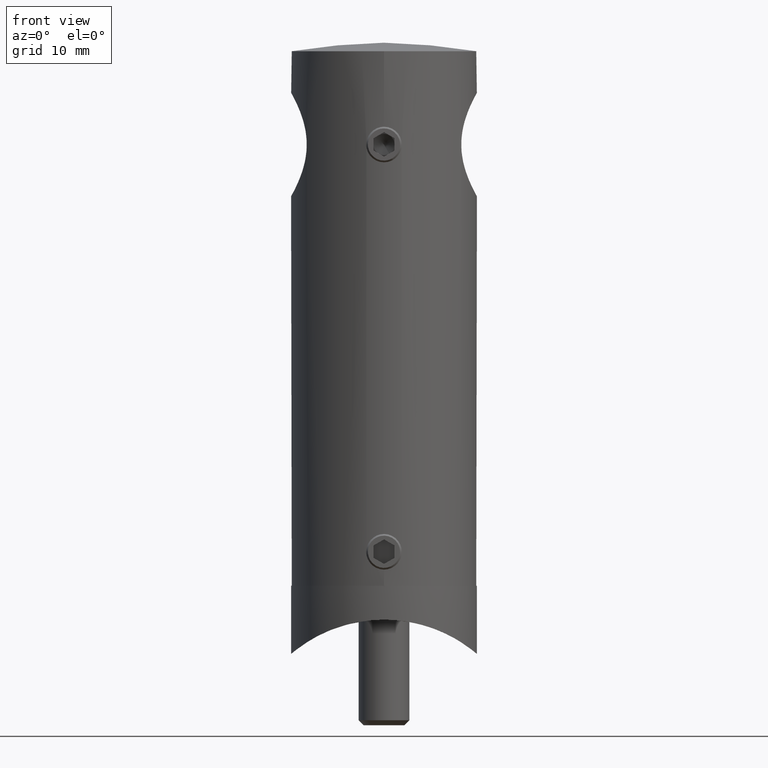
[diagram: clean part render]
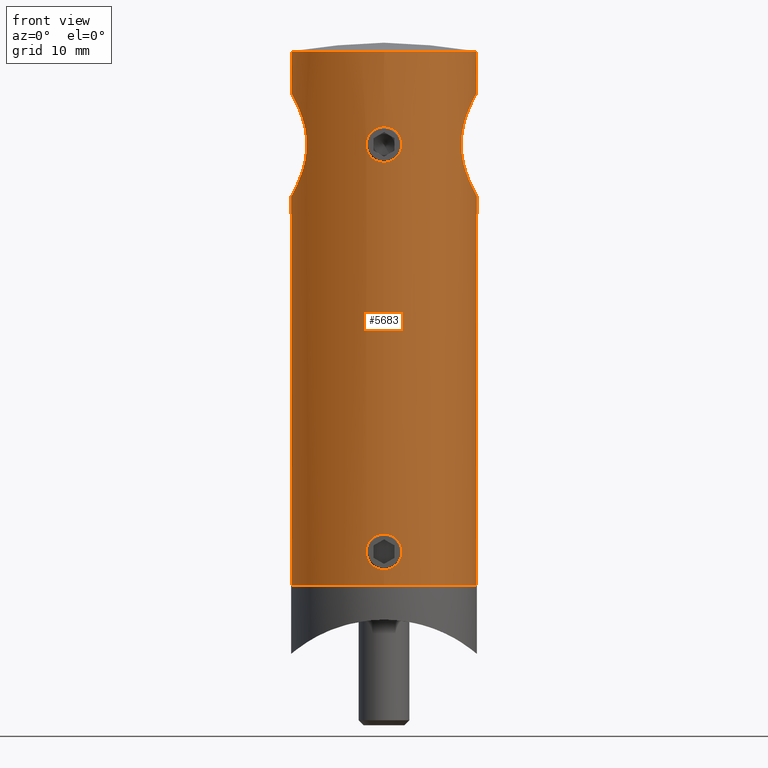
[diagram: same view with one face highlighted and labeled with its STEP entity id]
A machine part, front view. The second image highlights one B-rep face of the part: STEP entity #5683.
In plain terms, the highlighted cylindrical surface (bore or boss wall) has radius 10.95 mm, axis along (0, 0, 1).
Its self-contained STEP definition (entity closure, byte-faithful):
#10 = CARTESIAN_POINT ( 'NONE',  ( 2.099796498017635571, -10.74678345876895413, -27.72107757319184174 ) ) ;
#56 = EDGE_LOOP ( 'NONE', ( #15600 ) ) ;
#66 = CARTESIAN_POINT ( 'NONE',  ( -10.94999999999999751, 0.4121271812347865882, 13.89999999999999680 ) ) ;
#68 = CARTESIAN_POINT ( 'NONE',  ( -1.821859515416834885, -10.79764976955035394, -26.94667654771037490 ) ) ;
#112 = CARTESIAN_POINT ( 'NONE',  ( 9.093159490502698006, 6.100569724278071426, 19.59579318104650980 ) ) ;
#117 = CARTESIAN_POINT ( 'NONE',  ( 1.293101425834981999, -10.87512357765328197, -29.67703673224634997 ) ) ;
#168 = CARTESIAN_POINT ( 'NONE',  ( -10.29763792113849519, 3.739050856306787463, 15.16406318220803051 ) ) ;
#242 = CARTESIAN_POINT ( 'NONE',  ( 0.000000000000000000, -6.776263578034403945E-17, 31.00000000000000000 ) ) ;
#303 = CARTESIAN_POINT ( 'NONE',  ( 1.885917834137800009, -10.78650599950293021, 20.93399032342226462 ) ) ;
#313 = ORIENTED_EDGE ( 'NONE', *, *, #5298, .T. ) ;
#325 = CARTESIAN_POINT ( 'NONE',  ( -10.86057621934825868, -1.410670984356244828, 14.06192453670200493 ) ) ;
#343 = FACE_OUTER_BOUND ( 'NONE', #56, .T. ) ;
#391 = CARTESIAN_POINT ( 'NONE',  ( -10.18074281571860240, -4.042908466687186397, 15.41551523344308450 ) ) ;
#425 = CARTESIAN_POINT ( 'NONE',  ( -1.387672970768112579, -10.86216231582313796, 21.58222270293894596 ) ) ;
#448 = CARTESIAN_POINT ( 'NONE',  ( -10.73147197088350957, -2.184879164022425435, 14.30119630879068282 ) ) ;
#476 = CARTESIAN_POINT ( 'NONE',  ( -2.086371172607794033, -10.74943268627375659, 20.27557979222209994 ) ) ;
#526 = CARTESIAN_POINT ( 'NONE',  ( -1.582894502520246105, -10.83543499094428419, 21.38690661163142792 ) ) ;
#534 = DIRECTION ( 'NONE',  ( 0.000000000000000000, -1.000000000000000000, 0.000000000000000000 ) ) ;
#918 = CARTESIAN_POINT ( 'NONE',  ( 9.768452395021000711, 4.949254153054865490, 23.57118669077423334 ) ) ;
#978 = CARTESIAN_POINT ( 'NONE',  ( 10.92682766583283360, -0.8158183671098866441, 13.94132388569383352 ) ) ;
#1037 = CARTESIAN_POINT ( 'NONE',  ( 9.826326586135246899, -4.833712876441484951, 16.27394296238261617 ) ) ;
#1041 = CARTESIAN_POINT ( 'NONE',  ( -0.2757743680183740720, -10.94735313963124312, -30.08632021014065216 ) ) ;
#1078 = CARTESIAN_POINT ( 'NONE',  ( 9.944810887569845548, -4.584998447081173545, 15.97184031352808908 ) ) ;
#1130 = CARTESIAN_POINT ( 'NONE',  ( 10.76670801674820233, -2.004736178113188494, 25.76472609174774320 ) ) ;
#1134 = CIRCLE ( 'NONE', #9133, 10.95000000000000107 ) ;
#1136 = CARTESIAN_POINT ( 'NONE',  ( 0.2735842980591204898, -10.95002111150957624, -25.89988991854865574 ) ) ;
#1179 = ORIENTED_EDGE ( 'NONE', *, *, #14818, .T. ) ;
#1184 = CARTESIAN_POINT ( 'NONE',  ( 10.92670914720671149, 0.8172887995439637177, 13.94153729450738233 ) ) ;
#1188 = CARTESIAN_POINT ( 'NONE',  ( 1.281204221748352801, -10.87539648375202539, -26.33043682646926342 ) ) ;
#1220 = EDGE_LOOP ( 'NONE', ( #1179 ) ) ;
#1235 = CARTESIAN_POINT ( 'NONE',  ( 1.823210752181828820, -10.79742419212909965, -29.05108683988479612 ) ) ;
#1286 = CARTESIAN_POINT ( 'NONE',  ( -0.6781491315705323597, -10.92972327236432051, -29.99224664012108477 ) ) ;
#1340 = CARTESIAN_POINT ( 'NONE',  ( -10.83868741255074930, 1.607475542562763149, 14.10176821019718574 ) ) ;
#1399 = CARTESIAN_POINT ( 'NONE',  ( 10.18074281571859174, 4.042908466687191726, 15.41551523344308805 ) ) ;
#1449 = CARTESIAN_POINT ( 'NONE',  ( -9.490515665216376462, -5.464875276261936143, 22.73897214734641281 ) ) ;
#1500 = CARTESIAN_POINT ( 'NONE',  ( -9.093931798807561862, -6.099418408269275282, 20.42122344917229171 ) ) ;
#1532 = CARTESIAN_POINT ( 'NONE',  ( -0.2757743680183738499, -10.94735313963124312, 17.91367978985935494 ) ) ;
#1555 = CARTESIAN_POINT ( 'NONE',  ( -9.827761506231270872, -4.830806165742449920, 23.72984559646042158 ) ) ;
#1591 = CARTESIAN_POINT ( 'NONE',  ( -2.044347719850194700, -10.75799651192986239, 19.44736500388635037 ) ) ;
#1616 = CARTESIAN_POINT ( 'NONE',  ( -10.29628097381320728, 3.742490332636333239, 24.83299621117545541 ) ) ;
#1665 = CARTESIAN_POINT ( 'NONE',  ( -10.94999999999999396, 1.057097118173366823E-15, 13.89999999999999325 ) ) ;
#1698 = CARTESIAN_POINT ( 'NONE',  ( -1.281995706206414010, -10.87529441485164483, 21.66888029437902219 ) ) ;
#2032 = B_SPLINE_CURVE_WITH_KNOTS ( 'NONE', 3,
 ( #15478, #11923, #978, #10523, #14293, #9379, #15429, #8230, #3373, #4691, #1078, #1037, #9433, #2239, #13051, #10627, #4493, #3428, #13138, #6896, #9328, #11873, #12994, #8282, #2192, #4639, #9487, #15525, #15332, #8334, #5850, #10675, #1130, #3473, #10578, #11813, #5901, #14345, #5745, #9526, #2337, #4598, #14209, #10732, #2150, #12950, #14152, #8133, #918, #3320, #11767, #4545, #6953, #15376, #12138, #112, #6050, #15567, #3736, #10829, #9680, #12018, #2576, #1399, #9628, #12079, #4793, #11973, #3681, #4839, #14487, #1184, #7165, #14547 ),
 .UNSPECIFIED., .T., .F.,
 ( 4, 2, 2, 2, 2, 2, 2, 2, 2, 2, 2, 2, 2, 2, 2, 2, 2, 2, 2, 2, 2, 2, 2, 2, 2, 2, 2, 2, 2, 2, 2, 2, 2, 2, 2, 2, 4 ),
 ( 0.000000000000000000, 0.001217233959529843024, 0.002434467919059686049, 0.003651701878589529507, 0.004868935838119372098, 0.005477552817884296862, 0.006086169797649221627, 0.007303403757179064218, 0.008520637716708906809, 0.009737871676238745930, 0.01095510563576858679, 0.01217233959529842764, 0.01338957355482826850, 0.01460680751435810935, 0.01582404147388795021, 0.01704127543341779280, 0.01764989241318271063, 0.01825850939294763192, 0.01947574335247747104, 0.02069297731200731710, 0.02191021127153715622, 0.02312744523106700228, 0.02434467919059684141, 0.02495329617036175923, 0.02556191315012668053, 0.02677914710965650230, 0.02799638106918633101, 0.02921361502871615279, 0.03043084898824598150, 0.03164808294777581021, 0.03286531690730563199, 0.03408255086683546070, 0.03529978482636528248, 0.03651701878589511119, 0.03712563576566002554, 0.03773425274542493296, 0.03895148670495476168 ),
 .UNSPECIFIED. ) ;
#2150 = CARTESIAN_POINT ( 'NONE',  ( 10.18323341906132029, 4.036605263572401903, 24.58995614860064904 ) ) ;
#2192 = CARTESIAN_POINT ( 'NONE',  ( 9.593327564350756731, -5.285063471602612140, 23.07138322325212698 ) ) ;
#2196 = CARTESIAN_POINT ( 'NONE',  ( 1.355252715606880543E-17, -10.94999999999999751, -30.10000000000000142 ) ) ;
#2239 = CARTESIAN_POINT ( 'NONE',  ( 9.595974733628985121, -5.280216740019255006, 16.92054022387123169 ) ) ;
#2245 = FACE_BOUND ( 'NONE', #8988, .T. ) ;
#2337 = CARTESIAN_POINT ( 'NONE',  ( 10.77455119342263679, 1.988554168701583968, 25.78063558606951489 ) ) ;
#2379 = CARTESIAN_POINT ( 'NONE',  ( -10.92682766583283360, 0.8158183671098853118, 13.94132388569383352 ) ) ;
#2381 = CARTESIAN_POINT ( 'NONE',  ( 2.044858405884963481, -10.75791081565602880, -27.44804881978283007 ) ) ;
#2434 = CARTESIAN_POINT ( 'NONE',  ( -1.054900112451988781, -10.89966638724250281, -26.17904964909883958 ) ) ;
#2489 = CARTESIAN_POINT ( 'NONE',  ( -1.670039624064399320, -10.82217077548864204, -26.71951960455732689 ) ) ;
#2537 = CARTESIAN_POINT ( 'NONE',  ( -10.77254898319129417, 1.999174540163153990, 14.22309129948361317 ) ) ;
#2576 = CARTESIAN_POINT ( 'NONE',  ( 9.943921655449349473, 4.594676839572319871, 15.96867835757290521 ) ) ;
#2595 = FACE_BOUND ( 'NONE', #1220, .T. ) ;
#2633 = CARTESIAN_POINT ( 'NONE',  ( -10.60884419437644155, -2.738188333989597822, 14.53441983528883341 ) ) ;
#2664 = CARTESIAN_POINT ( 'NONE',  ( 0.5505505946182460697, -10.93908950952962478, 22.04494409253288723 ) ) ;
#2689 = CARTESIAN_POINT ( 'NONE',  ( -10.92571837505590260, 0.8301113191702993443, 26.05668212774836690 ) ) ;
#2719 = CARTESIAN_POINT ( 'NONE',  ( -2.100080651905816609, -10.74672793283170158, 20.13606717247182942 ) ) ;
#2740 = CARTESIAN_POINT ( 'NONE',  ( -9.824223078992860181, -4.842382934615432788, 16.26948384287063121 ) ) ;
#2792 = CARTESIAN_POINT ( 'NONE',  ( -10.76670801674819344, 2.004736178113185829, 25.76472609174773609 ) ) ;
#2853 = CARTESIAN_POINT ( 'NONE',  ( -10.83159546945464946, 1.617871517715537388, 25.88502555719835740 ) ) ;
#2887 = CARTESIAN_POINT ( 'NONE',  ( -1.388540965730447718, -10.86204216567910841, 18.41866458427049835 ) ) ;
#3025 = CARTESIAN_POINT ( 'NONE',  ( 0.000000000000000000, -10.94999999999999396, 17.89999999999999858 ) ) ;
#3094 = CARTESIAN_POINT ( 'NONE',  ( 0.5474944068088989368, -10.93714547456156261, 17.96791721342306758 ) ) ;
#3320 = CARTESIAN_POINT ( 'NONE',  ( 9.597132807920754516, 5.278130097716467795, 23.08306777076903771 ) ) ;
#3373 = CARTESIAN_POINT ( 'NONE',  ( 10.18119428978733154, -4.041693247994849969, 15.41457401766155400 ) ) ;
#3428 = CARTESIAN_POINT ( 'NONE',  ( 9.122515858528963406, -6.057353606905162557, 19.17430535306850814 ) ) ;
#3473 = CARTESIAN_POINT ( 'NONE',  ( 10.83159546945464768, -1.617871517715541385, 25.88502555719836096 ) ) ;
#3531 = CARTESIAN_POINT ( 'NONE',  ( -0.5472228455796224189, -10.93715092364591257, -25.96788923726215970 ) ) ;
#3582 = CARTESIAN_POINT ( 'NONE',  ( -9.767103415457006221, 4.951910828081859783, 16.43250515286716862 ) ) ;
#3585 = CARTESIAN_POINT ( 'NONE',  ( 1.992721759005947391, -10.76728434641842114, -28.67670243698784205 ) ) ;
#3640 = CARTESIAN_POINT ( 'NONE',  ( -1.280830752029747943, -10.87543660175324511, -29.66981359061468027 ) ) ;
#3681 = CARTESIAN_POINT ( 'NONE',  ( 10.76881476584365060, 1.993394816998884211, 14.23134303658119215 ) ) ;
#3686 = CARTESIAN_POINT ( 'NONE',  ( 0.1390809839677397408, -10.94999999999999574, -30.10000000000000497 ) ) ;
#3736 = CARTESIAN_POINT ( 'NONE',  ( 9.302565064768252512, 5.779008060995749041, 18.00720334480982388 ) ) ;
#3740 = VERTEX_POINT ( 'NONE', #14981 ) ;
#3771 = AXIS2_PLACEMENT_3D ( 'NONE', #242, #8667, #12203 ) ;
#3849 = CARTESIAN_POINT ( 'NONE',  ( -9.122570715121476326, -6.057273609166832884, 20.82644698176448372 ) ) ;
#3899 = CARTESIAN_POINT ( 'NONE',  ( -9.941984986648240152, 4.598809416968435038, 24.02653325968089604 ) ) ;
#3930 = CARTESIAN_POINT ( 'NONE',  ( 2.099796498017636015, -10.74678345876895058, 20.27892242680815826 ) ) ;
#3958 = CARTESIAN_POINT ( 'NONE',  ( -9.093110424224123634, 6.100642869923747824, 20.40268625380518941 ) ) ;
#4017 = CARTESIAN_POINT ( 'NONE',  ( -9.301887473417728813, 5.780084648363199129, 21.98958284450476341 ) ) ;
#4069 = CARTESIAN_POINT ( 'NONE',  ( -10.85903604788204113, 1.422432006849712938, 25.93525972351586972 ) ) ;
#4096 = CARTESIAN_POINT ( 'NONE',  ( -0.9319723657701312058, -10.91100937237502322, 21.88687929404428800 ) ) ;
#4362 = CARTESIAN_POINT ( 'NONE',  ( 2.033260313530652841, -10.75960453488444024, 19.45716824466147443 ) ) ;
#4429 = DIRECTION ( 'NONE',  ( -0.000000000000000000, 6.776263578034402713E-17, 1.000000000000000000 ) ) ;
#4493 = CARTESIAN_POINT ( 'NONE',  ( 9.227944537128733415, -5.895495562535474576, 18.38245975593098436 ) ) ;
#4545 = CARTESIAN_POINT ( 'NONE',  ( 9.306211012971372654, 5.773143507558661014, 22.00938902409952647 ) ) ;
#4598 = CARTESIAN_POINT ( 'NONE',  ( 10.61182838424365116, 2.726609514563149261, 25.47135230230033542 ) ) ;
#4639 = CARTESIAN_POINT ( 'NONE',  ( 9.822453404249017694, -4.845950760909270016, 23.72586258815131544 ) ) ;
#4691 = CARTESIAN_POINT ( 'NONE',  ( 10.00429035209408291, -4.454104839394610771, 15.82761410973536265 ) ) ;
#4696 = CARTESIAN_POINT ( 'NONE',  ( 0.9298435843171816151, -10.91118518871290988, -26.11211322283110547 ) ) ;
#4745 = CARTESIAN_POINT ( 'NONE',  ( -1.387672970768113245, -10.86216231582314151, -26.41777729706106470 ) ) ;
#4793 = CARTESIAN_POINT ( 'NONE',  ( 10.60884419437644155, 2.738188333989598711, 14.53441983528884052 ) ) ;
#4794 = CARTESIAN_POINT ( 'NONE',  ( -9.489581600530891947, 5.466479470351479186, 17.26434178596724678 ) ) ;
#4796 = CARTESIAN_POINT ( 'NONE',  ( -1.678334704184240023, -10.82237112238999188, -29.29145788275845774 ) ) ;
#4839 = CARTESIAN_POINT ( 'NONE',  ( 10.83331391922452980, 1.606332432912409125, 14.11181503576764129 ) ) ;
#4845 = CARTESIAN_POINT ( 'NONE',  ( -1.281995706206416674, -10.87529441485164838, -26.33111970562097426 ) ) ;
#4902 = CARTESIAN_POINT ( 'NONE',  ( 0.5505505946182431831, -10.93908950952962655, -25.95505590746709856 ) ) ;
#5049 = CARTESIAN_POINT ( 'NONE',  ( -10.29958940676430146, -3.733766856701450809, 24.84009295761133629 ) ) ;
#5085 = CARTESIAN_POINT ( 'NONE',  ( 1.281204221748351912, -10.87539648375202184, 21.66956317353075079 ) ) ;
#5106 = CARTESIAN_POINT ( 'NONE',  ( -10.92782771202142023, -0.8027466551852050491, 26.06047341402041084 ) ) ;
#5142 = CARTESIAN_POINT ( 'NONE',  ( 2.086595431609061801, -10.74938866887196021, 19.72626048518554143 ) ) ;
#5166 = CARTESIAN_POINT ( 'NONE',  ( -10.77455119342262613, -1.988554168701589075, 25.78063558606949357 ) ) ;
#5214 = VERTEX_POINT ( 'NONE', #3025 ) ;
#5216 = CARTESIAN_POINT ( 'NONE',  ( -9.593327564350754955, 5.285063471602608587, 23.07138322325212343 ) ) ;
#5298 = EDGE_CURVE ( 'NONE', #12792, #12792, #2032, .T. ) ;
#5303 = EDGE_LOOP ( 'NONE', ( #11903 ) ) ;
#5309 = CARTESIAN_POINT ( 'NONE',  ( -0.5472228455796208646, -10.93715092364590724, 22.03211076273784741 ) ) ;
#5464 = CARTESIAN_POINT ( 'NONE',  ( 1.293101425834980445, -10.87512357765328197, 18.32296326775366779 ) ) ;
#5619 = CIRCLE ( 'NONE', #3771, 10.94999999999998685 ) ;
#5683 = ADVANCED_FACE ( 'NONE', ( #8263, #2595, #2245, #9929, #343, #12811 ), #6750, .T. ) ;
#5745 = CARTESIAN_POINT ( 'NONE',  ( 10.92782771202141312, 0.8027466551851994980, 26.06047341402041440 ) ) ;
#5850 = CARTESIAN_POINT ( 'NONE',  ( 10.60658031837380477, -2.746774357630612062, 25.46118979747683753 ) ) ;
#5901 = CARTESIAN_POINT ( 'NONE',  ( 10.94939010762941400, -0.4272839714466650229, 26.09890519065454129 ) ) ;
#5941 = EDGE_CURVE ( 'NONE', #5214, #5214, #9215, .T. ) ;
#5946 = CARTESIAN_POINT ( 'NONE',  ( -1.388540965730447940, -10.86204216567910663, -29.58133541572950875 ) ) ;
#5998 = CARTESIAN_POINT ( 'NONE',  ( -9.305791171234611525, 5.773803549678548919, 17.99265941268094338 ) ) ;
#6001 = CARTESIAN_POINT ( 'NONE',  ( 1.821252655317250113, -10.79775344100291434, -26.94560343896731069 ) ) ;
#6050 = CARTESIAN_POINT ( 'NONE',  ( 9.120945736650540425, 6.059700103995923293, 19.19137537546631123 ) ) ;
#6053 = CARTESIAN_POINT ( 'NONE',  ( 1.580488950125705783, -10.83577938781543182, -26.61047088964984653 ) ) ;
#6087 = B_SPLINE_CURVE_WITH_KNOTS ( 'NONE', 3,
 ( #14394, #66, #2379, #1340, #2537, #12183, #13409, #168, #8593, #7166, #15569, #13252, #3582, #12021, #4794, #5998, #14434, #7220, #11099, #3958, #8799, #11039, #4017, #8645, #5216, #6214, #3899, #12397, #1616, #14753, #14649, #12348, #2792, #2853, #4069, #2689, #8701, #9886, #5106, #11208, #5166, #6433, #10000, #5049, #13679, #12292, #10059, #1555, #13569, #7479, #1449, #9939, #13622, #3849, #1500, #9840, #14856, #11263, #6372, #12457, #14802, #2740, #7603, #391, #7652, #7541, #2633, #448, #6319, #11161, #325, #7434, #8862, #1665 ),
 .UNSPECIFIED., .T., .F.,
 ( 4, 2, 2, 2, 2, 2, 2, 2, 2, 2, 2, 2, 2, 2, 2, 2, 2, 2, 2, 2, 2, 2, 2, 2, 2, 2, 2, 2, 2, 2, 2, 2, 2, 2, 2, 2, 4 ),
 ( 0.000000000000000000, 0.001217233959529840639, 0.002434467919059681278, 0.003651701878589521267, 0.004868935838119362557, 0.005477552817884276913, 0.006086169797649192137, 0.007303403757179029523, 0.008520637716708868645, 0.009737871676238707766, 0.01095510563576854515, 0.01217233959529838427, 0.01338957355482822340, 0.01460680751435805905, 0.01582404147388789817, 0.01704127543341773729, 0.01764989241318265858, 0.01825850939294757641, 0.01947574335247741900, 0.02069297731200725812, 0.02191021127153710071, 0.02312744523106693983, 0.02434467919059678243, 0.02495329617036170025, 0.02556191315012662155, 0.02677914710965645373, 0.02799638106918628591, 0.02921361502871611462, 0.03043084898824594681, 0.03164808294777578246, 0.03286531690730561117, 0.03408255086683544682, 0.03529978482636527554, 0.03651701878589511119, 0.03712563576566002554, 0.03773425274542493990, 0.03895148670495476861 ),
 .UNSPECIFIED. ) ;
#6187 = VERTEX_POINT ( 'NONE', #10236 ) ;
#6201 = EDGE_LOOP ( 'NONE', ( #13946 ) ) ;
#6214 = CARTESIAN_POINT ( 'NONE',  ( -9.822453404249021247, 4.845950760909269128, 23.72586258815132965 ) ) ;
#6297 = CARTESIAN_POINT ( 'NONE',  ( 1.580488950125705783, -10.83577938781543359, 21.38952911035014282 ) ) ;
#6319 = CARTESIAN_POINT ( 'NONE',  ( -10.76881476584365060, -1.993394816998885988, 14.23134303658119570 ) ) ;
#6350 = CARTESIAN_POINT ( 'NONE',  ( -2.981555974335137194E-16, -10.94999999999999396, 17.89999999999999858 ) ) ;
#6372 = CARTESIAN_POINT ( 'NONE',  ( -9.302565064768257841, -5.779008060995747265, 18.00720334480982388 ) ) ;
#6433 = CARTESIAN_POINT ( 'NONE',  ( -10.61182838424364583, -2.726609514563150150, 25.47135230230032832 ) ) ;
#6472 = CARTESIAN_POINT ( 'NONE',  ( -0.5446005407983297575, -10.93727582704267931, 17.96722018598682880 ) ) ;
#6520 = CARTESIAN_POINT ( 'NONE',  ( -0.1380576555321684218, -10.94998939549309469, 22.09994470506688558 ) ) ;
#6578 = CARTESIAN_POINT ( 'NONE',  ( 0.000000000000000000, -4.336808689942017736E-15, -32.00000000000000000 ) ) ;
#6612 = CARTESIAN_POINT ( 'NONE',  ( 10.95000000000000107, -1.226503707624227088E-15, 13.89999999999999503 ) ) ;
#6681 = CARTESIAN_POINT ( 'NONE',  ( -2.981555974335137194E-16, -10.94999999999999396, 17.89999999999999858 ) ) ;
#6750 = CYLINDRICAL_SURFACE ( 'NONE', #7833, 10.94999999999999396 ) ;
#6896 = CARTESIAN_POINT ( 'NONE',  ( 9.093110424224123634, -6.100642869923747824, 20.40268625380517520 ) ) ;
#6953 = CARTESIAN_POINT ( 'NONE',  ( 9.228174629133425455, 5.895138085144333573, 21.61892715928092912 ) ) ;
#7113 = CARTESIAN_POINT ( 'NONE',  ( -1.992919302065093046, -10.76724863828894030, -27.32378727517759387 ) ) ;
#7165 = CARTESIAN_POINT ( 'NONE',  ( 10.95000000000000284, 0.4121271812347799268, 13.89999999999999503 ) ) ;
#7166 = CARTESIAN_POINT ( 'NONE',  ( -10.00429035209408468, 4.454104839394614324, 15.82761410973536620 ) ) ;
#7169 = CARTESIAN_POINT ( 'NONE',  ( -2.032657309082526620, -10.75971895592318894, -27.45484575063256827 ) ) ;
#7220 = CARTESIAN_POINT ( 'NONE',  ( -9.122515858528966959, 6.057353606905164334, 19.17430535306851880 ) ) ;
#7222 = CARTESIAN_POINT ( 'NONE',  ( -0.2774278839632405846, -10.94731733981127419, -25.91386463431566156 ) ) ;
#7267 = CARTESIAN_POINT ( 'NONE',  ( 0.6806122791774021907, -10.92956076591045900, -29.99134957791890344 ) ) ;
#7434 = CARTESIAN_POINT ( 'NONE',  ( -10.92670914720671504, -0.8172887995439610531, 13.94153729450738943 ) ) ;
#7479 = CARTESIAN_POINT ( 'NONE',  ( -9.597132807920752740, -5.278130097716471347, 23.08306777076901639 ) ) ;
#7514 = CARTESIAN_POINT ( 'NONE',  ( 1.821252655317249225, -10.79775344100290901, 21.05439656103269641 ) ) ;
#7541 = CARTESIAN_POINT ( 'NONE',  ( -10.51219597293309604, -3.084431879808084087, 14.72263341771160761 ) ) ;
#7577 = CARTESIAN_POINT ( 'NONE',  ( -0.9323085337779204451, -10.91098244215235091, 18.11327433961146838 ) ) ;
#7603 = CARTESIAN_POINT ( 'NONE',  ( -9.943921655449356578, -4.594676839572312765, 15.96867835757289811 ) ) ;
#7634 = CARTESIAN_POINT ( 'NONE',  ( -1.670039624064398875, -10.82217077548863671, 21.28048039544268377 ) ) ;
#7652 = CARTESIAN_POINT ( 'NONE',  ( -10.29870546864894720, -3.735859989955133909, 15.16185281326796641 ) ) ;
#7682 = CARTESIAN_POINT ( 'NONE',  ( -1.678334704184240023, -10.82237112238998833, 18.70854211724153870 ) ) ;
#7833 = AXIS2_PLACEMENT_3D ( 'NONE', #9212, #4429, #15313 ) ;
#8133 = CARTESIAN_POINT ( 'NONE',  ( 9.827761506231265543, 4.830806165742444591, 23.72984559646041092 ) ) ;
#8230 = CARTESIAN_POINT ( 'NONE',  ( 10.29763792113849163, -3.739050856306786130, 15.16406318220802518 ) ) ;
#8236 = CARTESIAN_POINT ( 'NONE',  ( -0.1390809839677406845, -10.94999999999999929, -30.10000000000000142 ) ) ;
#8263 = FACE_BOUND ( 'NONE', #6201, .T. ) ;
#8282 = CARTESIAN_POINT ( 'NONE',  ( 9.485696458579454315, -5.473212201811906041, 22.72245599254218718 ) ) ;
#8334 = CARTESIAN_POINT ( 'NONE',  ( 10.50990397244917318, -3.092176300193995697, 25.27281063529038008 ) ) ;
#8337 = CARTESIAN_POINT ( 'NONE',  ( -2.086371172607794033, -10.74943268627376014, -27.72442020777791427 ) ) ;
#8382 = CARTESIAN_POINT ( 'NONE',  ( -2.044347719850195144, -10.75799651192986417, -28.55263499611365319 ) ) ;
#8432 = CARTESIAN_POINT ( 'NONE',  ( 2.086595431609061801, -10.74938866887195843, -28.27373951481447278 ) ) ;
#8492 = CARTESIAN_POINT ( 'NONE',  ( 0.5474944068088999360, -10.93714547456156438, -30.03208278657693242 ) ) ;
#8593 = CARTESIAN_POINT ( 'NONE',  ( -10.18119428978733865, 4.041693247994849969, 15.41457401766155932 ) ) ;
#8645 = CARTESIAN_POINT ( 'NONE',  ( -9.485696458579452539, 5.473212201811906041, 22.72245599254220849 ) ) ;
#8667 = DIRECTION ( 'NONE',  ( -0.000000000000000000, 6.776263578034402713E-17, 1.000000000000000000 ) ) ;
#8701 = CARTESIAN_POINT ( 'NONE',  ( -10.94939010762941400, 0.4272839714466597494, 26.09890519065453773 ) ) ;
#8799 = CARTESIAN_POINT ( 'NONE',  ( -9.120845060787624803, 6.059846290267839386, 20.80716163340864355 ) ) ;
#8862 = CARTESIAN_POINT ( 'NONE',  ( -10.94999999999999218, -0.4121271812347815366, 13.89999999999998970 ) ) ;
#8896 = CARTESIAN_POINT ( 'NONE',  ( -1.887459140277792713, -10.78623514378675807, 20.93085390235910381 ) ) ;
#8945 = CARTESIAN_POINT ( 'NONE',  ( -1.834675837396852804, -10.79573115272995310, 18.94230079405419787 ) ) ;
#8988 = EDGE_LOOP ( 'NONE', ( #11928 ) ) ;
#9094 = CARTESIAN_POINT ( 'NONE',  ( 0.6806122791774021907, -10.92956076591045722, 18.00865042208109656 ) ) ;
#9133 = AXIS2_PLACEMENT_3D ( 'NONE', #6578, #13775, #534 ) ;
#9142 = CARTESIAN_POINT ( 'NONE',  ( 1.992721759005946502, -10.76728434641841936, 19.32329756301215795 ) ) ;
#9212 = CARTESIAN_POINT ( 'NONE',  ( 0.000000000000000000, 0.000000000000000000, 32.00000000000000000 ) ) ;
#9215 = B_SPLINE_CURVE_WITH_KNOTS ( 'NONE', 3,
 ( #6350, #11300, #1532, #6472, #14781, #7577, #14835, #14891, #2887, #7682, #8945, #1591, #9977, #2719, #476, #9916, #11187, #8896, #11241, #7634, #526, #425, #1698, #10090, #4096, #12540, #5309, #13764, #6520, #9868, #2664, #11075, #12327, #5085, #13548, #6297, #14733, #7514, #303, #11133, #3930, #12379, #5142, #4362, #9142, #12760, #12809, #15047, #12706, #5464, #10293, #9094, #3094, #13919, #11521, #6681 ),
 .UNSPECIFIED., .T., .F.,
 ( 4, 2, 2, 2, 2, 2, 2, 2, 2, 2, 2, 2, 2, 2, 2, 2, 2, 2, 2, 2, 2, 2, 2, 2, 2, 2, 2, 4 ),
 ( 0.000000000000000000, 0.0004112486030759722618, 0.0008224972061519445236, 0.001233745809227916731, 0.001644994412303889047, 0.002467491618455832595, 0.003289988824607775926, 0.003701237427683747375, 0.004112486030759718823, 0.004523734633835690272, 0.004934983236911661721, 0.005346231839987633169, 0.005757480443063605485, 0.006168729046139576934, 0.006579977649215547515, 0.007402474855367492147, 0.007813723458443463596, 0.008224972061519435912, 0.008636220664595408228, 0.009047469267671380544, 0.009869966473823325176, 0.01028121507689929229, 0.01069246367997525766, 0.01110371228305122651, 0.01151496088612719362, 0.01233745809227912785, 0.01274870669535509843, 0.01315995529843106554 ),
 .UNSPECIFIED. ) ;
#9328 = CARTESIAN_POINT ( 'NONE',  ( 9.120845060787628356, -6.059846290267841162, 20.80716163340865066 ) ) ;
#9379 = CARTESIAN_POINT ( 'NONE',  ( 10.60962168609973766, -2.735038960441765532, 14.53292263992870126 ) ) ;
#9433 = CARTESIAN_POINT ( 'NONE',  ( 9.767103415457007998, -4.951910828081856231, 16.43250515286715796 ) ) ;
#9487 = CARTESIAN_POINT ( 'NONE',  ( 9.941984986648234823, -4.598809416968437702, 24.02653325968088538 ) ) ;
#9526 = CARTESIAN_POINT ( 'NONE',  ( 10.84037963601201504, 1.596242476308074698, 25.90133460763657425 ) ) ;
#9581 = CARTESIAN_POINT ( 'NONE',  ( 2.100100907954766782, -10.74672397463975315, -28.13715662478887580 ) ) ;
#9628 = CARTESIAN_POINT ( 'NONE',  ( 10.29870546864893832, 3.735859989955138349, 15.16185281326796286 ) ) ;
#9632 = CARTESIAN_POINT ( 'NONE',  ( -1.887459140277792713, -10.78623514378676163, -27.06914609764089263 ) ) ;
#9680 = CARTESIAN_POINT ( 'NONE',  ( 9.594863924184544146, 5.282292860837285886, 16.92383267418601633 ) ) ;
#9683 = CARTESIAN_POINT ( 'NONE',  ( -2.099837599490393281, -10.74677542721649282, -28.27585165488173757 ) ) ;
#9840 = CARTESIAN_POINT ( 'NONE',  ( -9.093159490502694453, -6.100569724278070538, 19.59579318104650270 ) ) ;
#9868 = CARTESIAN_POINT ( 'NONE',  ( 0.2735842980591227103, -10.95002111150956559, 22.10011008145134426 ) ) ;
#9886 = CARTESIAN_POINT ( 'NONE',  ( -10.95058672764290364, -0.3954309569055305951, 26.10105322671165951 ) ) ;
#9916 = CARTESIAN_POINT ( 'NONE',  ( -2.032657309082527064, -10.75971895592318894, 20.54515424936743173 ) ) ;
#9929 = FACE_BOUND ( 'NONE', #10952, .T. ) ;
#9939 = CARTESIAN_POINT ( 'NONE',  ( -9.306211012971374430, -5.773143507558668119, 22.00938902409952291 ) ) ;
#9977 = CARTESIAN_POINT ( 'NONE',  ( -2.099837599490393281, -10.74677542721648216, 19.72414834511826953 ) ) ;
#10000 = CARTESIAN_POINT ( 'NONE',  ( -10.51504410476971962, -3.075126723060551903, 25.28309666915531295 ) ) ;
#10059 = CARTESIAN_POINT ( 'NONE',  ( -9.946506090458775873, -4.581331796192328554, 24.03234861558467372 ) ) ;
#10084 = VERTEX_POINT ( 'NONE', #12693 ) ;
#10090 = CARTESIAN_POINT ( 'NONE',  ( -1.054900112451986116, -10.89966638724249748, 21.82095035090117463 ) ) ;
#10236 = CARTESIAN_POINT ( 'NONE',  ( 0.000000000000000000, -10.95000000000000462, -32.00000000000000000 ) ) ;
#10293 = CARTESIAN_POINT ( 'NONE',  ( 1.059427588198855519, -10.90157051192847426, 18.16630481007814524 ) ) ;
#10523 = CARTESIAN_POINT ( 'NONE',  ( 10.83868741255075108, -1.607475542562763815, 14.10176821019718396 ) ) ;
#10578 = CARTESIAN_POINT ( 'NONE',  ( 10.85903604788204646, -1.422432006849714492, 25.93525972351587683 ) ) ;
#10627 = CARTESIAN_POINT ( 'NONE',  ( 9.305791171234613302, -5.773803549678551583, 17.99265941268094338 ) ) ;
#10675 = CARTESIAN_POINT ( 'NONE',  ( 10.72931504694501648, -2.195393467891829431, 25.69474216844699654 ) ) ;
#10681 = CARTESIAN_POINT ( 'NONE',  ( 1.887599673832025982, -10.78620969927769835, -28.93050183685486232 ) ) ;
#10732 = CARTESIAN_POINT ( 'NONE',  ( 10.29958940676430323, 3.733766856701444148, 24.84009295761133984 ) ) ;
#10737 = CARTESIAN_POINT ( 'NONE',  ( -0.9319723657701336483, -10.91100937237503210, -26.11312070595572266 ) ) ;
#10788 = CARTESIAN_POINT ( 'NONE',  ( -0.6781183844136841055, -10.92972339409076277, -26.00775467936993479 ) ) ;
#10829 = CARTESIAN_POINT ( 'NONE',  ( 9.486790008022518705, 5.471331309378421714, 17.27370097366294743 ) ) ;
#10833 = CARTESIAN_POINT ( 'NONE',  ( 1.386739004820739751, -10.86227486281690879, -26.41706241358393825 ) ) ;
#10889 = CARTESIAN_POINT ( 'NONE',  ( 0.2763839898919890348, -10.94735187830101886, -30.08631792091251000 ) ) ;
#10952 = EDGE_LOOP ( 'NONE', ( #313 ) ) ;
#11039 = CARTESIAN_POINT ( 'NONE',  ( -9.224763464033930660, 5.900448348828395417, 21.59936119964442014 ) ) ;
#11075 = CARTESIAN_POINT ( 'NONE',  ( 0.9298435843171852788, -10.91118518871291165, 21.88788677716889453 ) ) ;
#11099 = CARTESIAN_POINT ( 'NONE',  ( -9.093983088392500136, 6.099341948236393307, 19.57806701499056601 ) ) ;
#11133 = CARTESIAN_POINT ( 'NONE',  ( 2.044858405884962593, -10.75791081565602525, 20.55195118021715572 ) ) ;
#11161 = CARTESIAN_POINT ( 'NONE',  ( -10.83331391922452980, -1.606332432912406460, 14.11181503576763774 ) ) ;
#11187 = CARTESIAN_POINT ( 'NONE',  ( -1.992919302065092602, -10.76724863828894385, 20.67621272482239547 ) ) ;
#11208 = CARTESIAN_POINT ( 'NONE',  ( -10.84037963601201859, -1.596242476308079583, 25.90133460763658135 ) ) ;
#11241 = CARTESIAN_POINT ( 'NONE',  ( -1.821859515416834219, -10.79764976955034328, 21.05332345228963220 ) ) ;
#11263 = CARTESIAN_POINT ( 'NONE',  ( -9.225227869656606572, -5.899727725429638525, 18.39779779691595962 ) ) ;
#11300 = CARTESIAN_POINT ( 'NONE',  ( -0.1390809839677408233, -10.94999999999999751, 17.89999999999999147 ) ) ;
#11521 = CARTESIAN_POINT ( 'NONE',  ( 0.1390809839677392412, -10.94999999999999218, 17.90000000000000213 ) ) ;
#11767 = CARTESIAN_POINT ( 'NONE',  ( 9.490515665216376462, 5.464875276261931702, 22.73897214734641636 ) ) ;
#11813 = CARTESIAN_POINT ( 'NONE',  ( 10.92571837505590437, -0.8301113191703012317, 26.05668212774836690 ) ) ;
#11873 = CARTESIAN_POINT ( 'NONE',  ( 9.224763464033925331, -5.900448348828397194, 21.59936119964442724 ) ) ;
#11903 = ORIENTED_EDGE ( 'NONE', *, *, #13963, .T. ) ;
#11923 = CARTESIAN_POINT ( 'NONE',  ( 10.94999999999999929, -0.4121271812347877539, 13.89999999999999503 ) ) ;
#11926 = CARTESIAN_POINT ( 'NONE',  ( -0.1380576555321710586, -10.94998939549310357, -25.90005529493310377 ) ) ;
#11928 = ORIENTED_EDGE ( 'NONE', *, *, #13602, .T. ) ;
#11973 = CARTESIAN_POINT ( 'NONE',  ( 10.73147197088350957, 2.184879164022422771, 14.30119630879068282 ) ) ;
#11977 = CARTESIAN_POINT ( 'NONE',  ( -1.582894502520246549, -10.83543499094428775, -26.61309338836857918 ) ) ;
#12018 = CARTESIAN_POINT ( 'NONE',  ( 9.824223078992853075, 4.842382934615430123, 16.26948384287061700 ) ) ;
#12021 = CARTESIAN_POINT ( 'NONE',  ( -9.595974733628974462, 5.280216740019255894, 16.92054022387121748 ) ) ;
#12025 = CARTESIAN_POINT ( 'NONE',  ( -1.834675837396853026, -10.79573115272995310, -29.05769920594579858 ) ) ;
#12079 = CARTESIAN_POINT ( 'NONE',  ( 10.51219597293309249, 3.084431879808084087, 14.72263341771160583 ) ) ;
#12083 = CARTESIAN_POINT ( 'NONE',  ( -0.5446005407983292024, -10.93727582704268642, -30.03277981401317831 ) ) ;
#12138 = CARTESIAN_POINT ( 'NONE',  ( 9.093931798807561862, 6.099418408269274394, 20.42122344917229526 ) ) ;
#12140 = CARTESIAN_POINT ( 'NONE',  ( -2.100080651905816609, -10.74672793283170336, -27.86393282752818124 ) ) ;
#12183 = CARTESIAN_POINT ( 'NONE',  ( -10.60962168609973766, 2.735038960441764200, 14.53292263992869948 ) ) ;
#12203 = DIRECTION ( 'NONE',  ( 0.000000000000000000, -1.000000000000000000, 0.000000000000000000 ) ) ;
#12292 = CARTESIAN_POINT ( 'NONE',  ( -10.00609170345706822, -4.450068544669215420, 24.17670442127998598 ) ) ;
#12327 = CARTESIAN_POINT ( 'NONE',  ( 1.052445151326516060, -10.89991248313860872, 21.82243920383785252 ) ) ;
#12348 = CARTESIAN_POINT ( 'NONE',  ( -10.72931504694501470, 2.195393467891819661, 25.69474216844699299 ) ) ;
#12379 = CARTESIAN_POINT ( 'NONE',  ( 2.100100907954767671, -10.74672397463975138, 19.86284337521113486 ) ) ;
#12397 = CARTESIAN_POINT ( 'NONE',  ( -10.17839522011391296, 4.048750952021975102, 24.57926128031751389 ) ) ;
#12457 = CARTESIAN_POINT ( 'NONE',  ( -9.486790008022529364, -5.471331309378424379, 17.27370097366294743 ) ) ;
#12540 = CARTESIAN_POINT ( 'NONE',  ( -0.6781183844136825511, -10.92972339409076277, 21.99224532063006876 ) ) ;
#12693 = CARTESIAN_POINT ( 'NONE',  ( 0.000000000000000000, -10.94999999999998685, 31.00000000000000000 ) ) ;
#12706 = CARTESIAN_POINT ( 'NONE',  ( 1.582510692289806453, -10.83548065110496594, 18.61280831047456985 ) ) ;
#12760 = CARTESIAN_POINT ( 'NONE',  ( 1.887599673832026204, -10.78620969927769302, 19.06949816314513413 ) ) ;
#12792 = VERTEX_POINT ( 'NONE', #6612 ) ;
#12809 = CARTESIAN_POINT ( 'NONE',  ( 1.823210752181827710, -10.79742419212909610, 18.94891316011519677 ) ) ;
#12811 = FACE_OUTER_BOUND ( 'NONE', #5303, .T. ) ;
#12950 = CARTESIAN_POINT ( 'NONE',  ( 10.00609170345707000, 4.450068544669212756, 24.17670442127999664 ) ) ;
#12994 = CARTESIAN_POINT ( 'NONE',  ( 9.301887473417728813, -5.780084648363200905, 21.98958284450477052 ) ) ;
#13051 = CARTESIAN_POINT ( 'NONE',  ( 9.489581600530893724, -5.466479470351482739, 17.26434178596725744 ) ) ;
#13138 = CARTESIAN_POINT ( 'NONE',  ( 9.093983088392496583, -6.099341948236395083, 19.57806701499056246 ) ) ;
#13199 = CARTESIAN_POINT ( 'NONE',  ( -0.9323085337779207782, -10.91098244215235269, -29.88672566038853873 ) ) ;
#13252 = CARTESIAN_POINT ( 'NONE',  ( -9.826326586135243346, 4.833712876441484063, 16.27394296238261262 ) ) ;
#13254 = CARTESIAN_POINT ( 'NONE',  ( 1.669072336391161260, -10.82232129180630409, -26.71823914932954125 ) ) ;
#13299 = CARTESIAN_POINT ( 'NONE',  ( 2.033260313530653729, -10.75960453488444557, -28.54283175533852202 ) ) ;
#13352 = CARTESIAN_POINT ( 'NONE',  ( 1.355252715606880543E-17, -10.94999999999999751, -30.10000000000000142 ) ) ;
#13409 = CARTESIAN_POINT ( 'NONE',  ( -10.51285461667963972, 3.082488583835407692, 14.72126432350995451 ) ) ;
#13548 = CARTESIAN_POINT ( 'NONE',  ( 1.386739004820739751, -10.86227486281690346, 21.58293758641606530 ) ) ;
#13569 = CARTESIAN_POINT ( 'NONE',  ( -9.768452395020995382, -4.949254153054862826, 23.57118669077422624 ) ) ;
#13602 = EDGE_CURVE ( 'NONE', #3740, #3740, #6087, .T. ) ;
#13622 = CARTESIAN_POINT ( 'NONE',  ( -9.228174629133425455, -5.895138085144337126, 21.61892715928092201 ) ) ;
#13679 = CARTESIAN_POINT ( 'NONE',  ( -10.18323341906130786, -4.036605263572408120, 24.58995614860063839 ) ) ;
#13764 = CARTESIAN_POINT ( 'NONE',  ( -0.2774278839632387528, -10.94731733981126531, 22.08613536568433844 ) ) ;
#13775 = DIRECTION ( 'NONE',  ( -0.000000000000000000, 6.776263578034402713E-17, 1.000000000000000000 ) ) ;
#13919 = CARTESIAN_POINT ( 'NONE',  ( 0.2763839898919896454, -10.94735187830101886, 17.91368207908748644 ) ) ;
#13946 = ORIENTED_EDGE ( 'NONE', *, *, #5941, .T. ) ;
#13963 = EDGE_CURVE ( 'NONE', #6187, #6187, #1134, .T. ) ;
#14152 = CARTESIAN_POINT ( 'NONE',  ( 9.946506090458772320, 4.581331796192322336, 24.03234861558467017 ) ) ;
#14209 = CARTESIAN_POINT ( 'NONE',  ( 10.51504410476972495, 3.075126723060547018, 25.28309666915532716 ) ) ;
#14293 = CARTESIAN_POINT ( 'NONE',  ( 10.77254898319129062, -1.999174540163154878, 14.22309129948361495 ) ) ;
#14345 = CARTESIAN_POINT ( 'NONE',  ( 10.95058672764290186, 0.3954309569055290408, 26.10105322671167727 ) ) ;
#14394 = CARTESIAN_POINT ( 'NONE',  ( -10.94999999999999396, 1.057097118173366823E-15, 13.89999999999999325 ) ) ;
#14395 = CARTESIAN_POINT ( 'NONE',  ( 1.059427588198857073, -10.90157051192846716, -29.83369518992189029 ) ) ;
#14425 = EDGE_CURVE ( 'NONE', #10084, #10084, #5619, .T. ) ;
#14434 = CARTESIAN_POINT ( 'NONE',  ( -9.227944537128729863, 5.895495562535473688, 18.38245975593099857 ) ) ;
#14435 = CARTESIAN_POINT ( 'NONE',  ( 1.885917834137799565, -10.78650599950293376, -27.06600967657773182 ) ) ;
#14487 = CARTESIAN_POINT ( 'NONE',  ( 10.86057621934826223, 1.410670984356247049, 14.06192453670201203 ) ) ;
#14492 = CARTESIAN_POINT ( 'NONE',  ( 1.670701551248524597, -10.82207110299603769, -29.27970204286241795 ) ) ;
#14547 = CARTESIAN_POINT ( 'NONE',  ( 10.95000000000000107, -9.757819552369539906E-16, 13.89999999999999503 ) ) ;
#14550 = CARTESIAN_POINT ( 'NONE',  ( 1.582510692289808008, -10.83548065110496594, -29.38719168952543725 ) ) ;
#14649 = CARTESIAN_POINT ( 'NONE',  ( -10.60658031837380655, 2.746774357630604069, 25.46118979747684108 ) ) ;
#14733 = CARTESIAN_POINT ( 'NONE',  ( 1.669072336391162814, -10.82232129180630054, 21.28176085067045875 ) ) ;
#14753 = CARTESIAN_POINT ( 'NONE',  ( -10.50990397244916785, 3.092176300193991700, 25.27281063529037297 ) ) ;
#14781 = CARTESIAN_POINT ( 'NONE',  ( -0.6781491315705314715, -10.92972327236430807, 18.00775335987889747 ) ) ;
#14802 = CARTESIAN_POINT ( 'NONE',  ( -9.594863924184544146, -5.282292860837289439, 16.92383267418602699 ) ) ;
#14818 = EDGE_CURVE ( 'NONE', #14990, #14990, #15550, .T. ) ;
#14835 = CARTESIAN_POINT ( 'NONE',  ( -1.052800978841357038, -10.89987425583662350, 18.17779942330782816 ) ) ;
#14856 = CARTESIAN_POINT ( 'NONE',  ( -9.120945736650545754, -6.059700103995927734, 19.19137537546630412 ) ) ;
#14891 = CARTESIAN_POINT ( 'NONE',  ( -1.280830752029749053, -10.87543660175324511, 18.33018640938530908 ) ) ;
#14935 = CARTESIAN_POINT ( 'NONE',  ( 0.000000000000000000, -10.94999999999999751, -30.10000000000000142 ) ) ;
#14981 = CARTESIAN_POINT ( 'NONE',  ( -10.94999999999999396, 0.000000000000000000, 13.89999999999999503 ) ) ;
#14990 = VERTEX_POINT ( 'NONE', #14935 ) ;
#15047 = CARTESIAN_POINT ( 'NONE',  ( 1.670701551248524819, -10.82207110299603414, 18.72029795713758915 ) ) ;
#15313 = DIRECTION ( 'NONE',  ( 0.000000000000000000, -1.000000000000000000, 0.000000000000000000 ) ) ;
#15332 = CARTESIAN_POINT ( 'NONE',  ( 10.29628097381321084, -3.742490332636336792, 24.83299621117545541 ) ) ;
#15376 = CARTESIAN_POINT ( 'NONE',  ( 9.122570715121478102, 6.057273609166830219, 20.82644698176449083 ) ) ;
#15429 = CARTESIAN_POINT ( 'NONE',  ( 10.51285461667963972, -3.082488583835409024, 14.72126432350995273 ) ) ;
#15478 = CARTESIAN_POINT ( 'NONE',  ( 10.95000000000000107, -9.757819552369539906E-16, 13.89999999999999503 ) ) ;
#15525 = CARTESIAN_POINT ( 'NONE',  ( 10.17839522011390763, -4.048750952021976879, 24.57926128031750324 ) ) ;
#15529 = CARTESIAN_POINT ( 'NONE',  ( -1.052800978841357482, -10.89987425583662350, -29.82220057669217894 ) ) ;
#15550 = B_SPLINE_CURVE_WITH_KNOTS ( 'NONE', 3,
 ( #2196, #8236, #1041, #12083, #1286, #13199, #15529, #3640, #5946, #4796, #12025, #8382, #9683, #12140, #8337, #7169, #7113, #9632, #68, #2489, #11977, #4745, #4845, #2434, #10737, #10788, #3531, #7222, #11926, #1136, #4902, #4696, #15573, #1188, #10833, #6053, #13254, #6001, #14435, #2381, #10, #9581, #8432, #13299, #3585, #10681, #1235, #14492, #14550, #117, #14395, #7267, #8492, #10889, #3686, #13352 ),
 .UNSPECIFIED., .T., .F.,
 ( 4, 2, 2, 2, 2, 2, 2, 2, 2, 2, 2, 2, 2, 2, 2, 2, 2, 2, 2, 2, 2, 2, 2, 2, 2, 2, 2, 4 ),
 ( 0.000000000000000000, 0.0004112486030759675455, 0.0008224972061519350910, 0.001233745809227902637, 0.001644994412303870182, 0.002467491618455806140, 0.003289988824607742099, 0.003701237427683715282, 0.004112486030759688466, 0.004523734633835662516, 0.004934983236911635700, 0.005346231839987608883, 0.005757480443063582067, 0.006168729046139556117, 0.006579977649215529301, 0.007402474855367473933, 0.007813723458443447983, 0.008224972061519420299, 0.008636220664595396085, 0.009047469267671368401, 0.009869966473823313033, 0.01028121507689928188, 0.01069246367997524899, 0.01110371228305121610, 0.01151496088612718321, 0.01233745809227911917, 0.01274870669535508629, 0.01315995529843104993 ),
 .UNSPECIFIED. ) ;
#15567 = CARTESIAN_POINT ( 'NONE',  ( 9.225227869656597690, 5.899727725429634084, 18.39779779691595252 ) ) ;
#15569 = CARTESIAN_POINT ( 'NONE',  ( -9.944810887569843771, 4.584998447081175321, 15.97184031352809619 ) ) ;
#15573 = CARTESIAN_POINT ( 'NONE',  ( 1.052445151326515171, -10.89991248313861405, -26.17756079616214038 ) ) ;
#15600 = ORIENTED_EDGE ( 'NONE', *, *, #14425, .F. ) ;